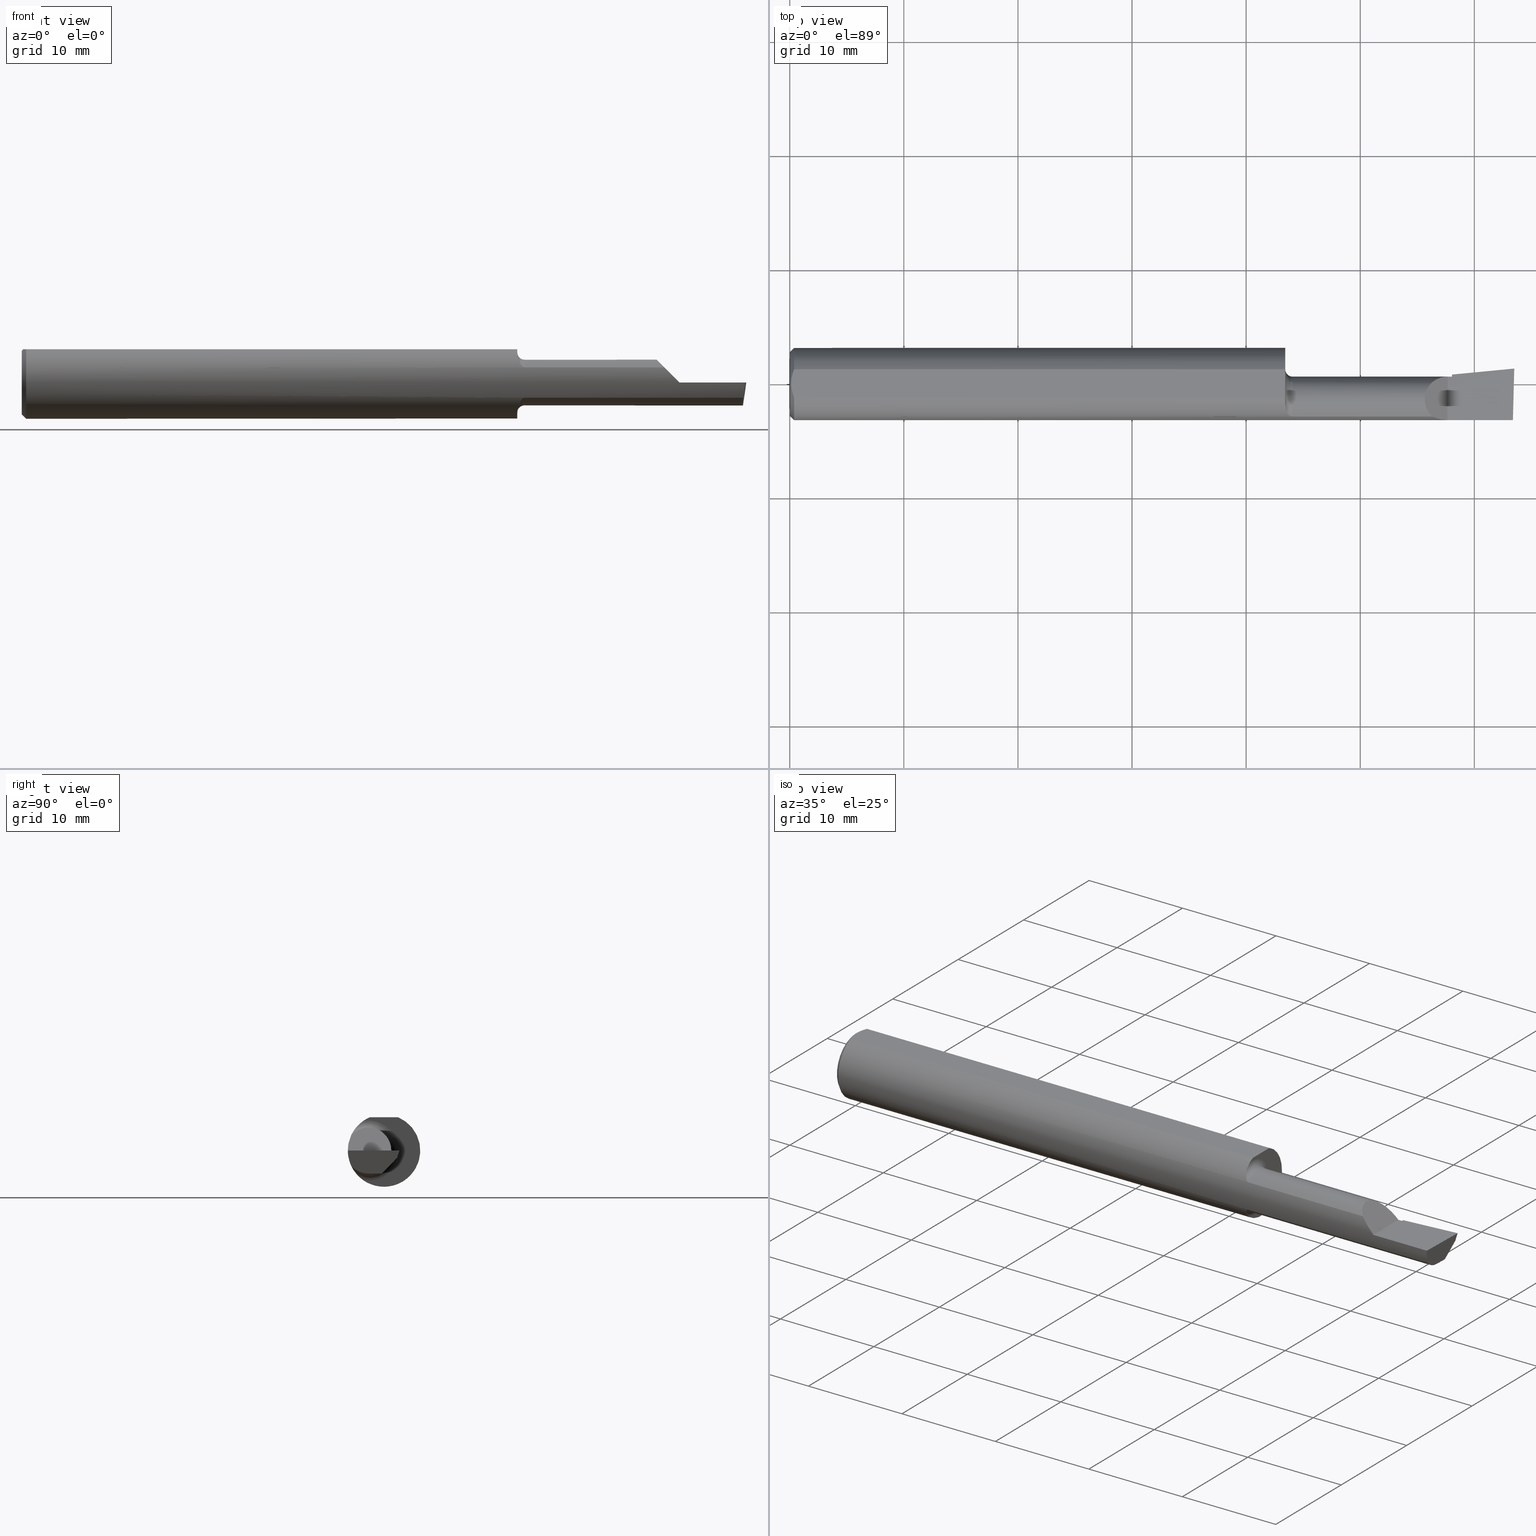
[diagram: canonical four-view strip — front | top / right | iso, engineering-drawing reading convention]
A machine part, canonical four-view strip (front | top / right | iso — engineering-drawing reading convention). The complete STEP part file that produces these views, byte-faithful:
ISO-10303-21;
HEADER;
FILE_DESCRIPTION (( 'STEP AP214' ),
    '1' );
FILE_NAME ('B180750.STEP',
    '2019-07-25T18:12:56',
    ( '' ),
    ( '' ),
    'SwSTEP 2.0',
    'SolidWorks 2018',
    '' );
FILE_SCHEMA (( 'AUTOMOTIVE_DESIGN' ));
ENDSEC;

DATA;
#1 = VERTEX_POINT ( 'NONE', #439 ) ;
#2 = CARTESIAN_POINT ( 'NONE',  ( 1.709999999999999964, 0.04895916665957456004, 0.1148500000000000076 ) ) ;
#3 = CARTESIAN_POINT ( 'NONE',  ( 0.01499999999999999424, 0.0000000000000000000, 0.0000000000000000000 ) ) ;
#4 = DIRECTION ( 'NONE',  ( 1.000000000000000000, -3.414809992080329023E-18, 0.0000000000000000000 ) ) ;
#5 = LINE ( 'NONE', #133, #515 ) ;
#6 = DIRECTION ( 'NONE',  ( 1.000000000000000000, 0.0000000000000000000, 0.0000000000000000000 ) ) ;
#7 = ORIENTED_EDGE ( 'NONE', *, *, #29, .F. ) ;
#8 = EDGE_CURVE ( 'NONE', #317, #527, #427, .T. ) ;
#9 = EDGE_LOOP ( 'NONE', ( #300, #383, #232, #120, #325, #541, #244, #77, #151, #167, #146, #246, #584 ) ) ;
#10 = CARTESIAN_POINT ( 'NONE',  ( 2.285000000000000142, -0.05399999999999999939, 0.0000000000000000000 ) ) ;
#11 = CARTESIAN_POINT ( 'NONE',  ( 2.010000000000000231, -0.1133222222222222686, -0.05239843939104745635 ) ) ;
#12 = AXIS2_PLACEMENT_3D ( 'NONE', #86, #363, #92 ) ;
#13 = ADVANCED_FACE ( 'NONE', ( #105 ), #334, .F. ) ;
#14 = CARTESIAN_POINT ( 'NONE',  ( 2.270000000000000018, -0.1248500000000000165, 2.816687638038912303E-17 ) ) ;
#15 = VECTOR ( 'NONE', #143, 39.37007874015748143 ) ;
#16 = ORIENTED_EDGE ( 'NONE', *, *, #53, .T. ) ;
#17 = ADVANCED_FACE ( 'NONE', ( #567 ), #587, .F. ) ;
#18 = AXIS2_PLACEMENT_3D ( 'NONE', #127, #257, #447 ) ;
#19 = ORIENTED_EDGE ( 'NONE', *, *, #458, .T. ) ;
#20 = SURFACE_SIDE_STYLE ('',( #321 ) ) ;
#21 = EDGE_CURVE ( 'NONE', #381, #527, #481, .T. ) ;
#22 = DIRECTION ( 'NONE',  ( 0.0000000000000000000, -1.000000000000000000, 0.0000000000000000000 ) ) ;
#23 = VERTEX_POINT ( 'NONE', #171 ) ;
#24 = SURFACE_STYLE_USAGE ( .BOTH. , #20 ) ;
#25 = LINE ( 'NONE', #136, #575 ) ;
#26 = ORIENTED_EDGE ( 'NONE', *, *, #360, .T. ) ;
#27 = PRESENTATION_LAYER_ASSIGNMENT (  '', '', ( #291 ) ) ;
#28 = CARTESIAN_POINT ( 'NONE',  ( 0.01499999999999999077, -0.04895916665957456004, 0.1148500000000000215 ) ) ;
#29 = EDGE_CURVE ( 'NONE', #538, #228, #197, .T. ) ;
#30 = CARTESIAN_POINT ( 'NONE',  ( 0.01499999999999999424, 0.04895916665957457392, 0.1148500000000000076 ) ) ;
#31 = DIRECTION ( 'NONE',  ( 0.0000000000000000000, -1.000000000000000000, 0.0000000000000000000 ) ) ;
#32 = CARTESIAN_POINT ( 'NONE',  ( 1.723217602974939533, -0.1090277136498279120, 0.06089509507572538061 ) ) ;
#33 = CARTESIAN_POINT ( 'NONE',  ( 2.495338905960690301, -0.1248500000000000582, -6.632093541198142708E-17 ) ) ;
#34 = CYLINDRICAL_SURFACE ( 'NONE', #247, 0.07914999999999995650 ) ;
#35 = FACE_OUTER_BOUND ( 'NONE', #295, .T. ) ;
#36 = B_SPLINE_CURVE_WITH_KNOTS ( 'NONE', 3,
 ( #28, #115, #436, #346, #306, #437 ),
 .UNSPECIFIED., .F., .F.,
 ( 4, 2, 4 ),
 ( 0.001029394377391489035, 0.001663875367397493060, 0.002298356357403497086 ),
 .UNSPECIFIED. ) ;
#37 = ORIENTED_EDGE ( 'NONE', *, *, #593, .T. ) ;
#38 = VERTEX_POINT ( 'NONE', #214 ) ;
#39 = DIRECTION ( 'NONE',  ( -0.0000000000000000000, 1.000000000000000000, -0.0000000000000000000 ) ) ;
#40 = EDGE_CURVE ( 'NONE', #467, #90, #117, .T. ) ;
#41 = CARTESIAN_POINT ( 'NONE',  ( 1.734999999999999876, -0.1133222222222222131, 0.05239843939104742165 ) ) ;
#42 = CARTESIAN_POINT ( 'NONE',  ( 2.485278273515959313, -0.09572943287973845194, -0.08811753218725941472 ) ) ;
#43 = VERTEX_POINT ( 'NONE', #2 ) ;
#44 = DIRECTION ( 'NONE',  ( -1.000000000000000000, 3.414809992080329023E-18, 0.0000000000000000000 ) ) ;
#45 = PRODUCT_DEFINITION_SHAPE ( 'NONE', 'NONE',  #544 ) ;
#46 = DIRECTION ( 'NONE',  ( 1.000000000000000000, -3.414809992080329023E-18, 0.0000000000000000000 ) ) ;
#47 = DIRECTION ( 'NONE',  ( 3.414809992080329023E-18, 1.000000000000000000, 0.0000000000000000000 ) ) ;
#48 = AXIS2_PLACEMENT_3D ( 'NONE', #74, #520, #31 ) ;
#49 = CARTESIAN_POINT ( 'NONE',  ( 1.710429435078794747, -0.08094870196673338569, -0.09525057567498897149 ) ) ;
#50 = SURFACE_STYLE_USAGE ( .BOTH. , #275 ) ;
#51 = CARTESIAN_POINT ( 'NONE',  ( 2.488690395572168423, -0.007488501277203558557, -0.07914999999999992875 ) ) ;
#52 = VECTOR ( 'NONE', #327, 39.37007874015748854 ) ;
#53 = EDGE_CURVE ( 'NONE', #534, #199, #119, .T. ) ;
#54 = ORIENTED_EDGE ( 'NONE', *, *, #560, .T. ) ;
#55 = ORIENTED_EDGE ( 'NONE', *, *, #424, .F. ) ;
#56 = DIRECTION ( 'NONE',  ( 0.0000000000000000000, -1.000000000000000000, 0.0000000000000000000 ) ) ;
#57 = CARTESIAN_POINT ( 'NONE',  ( 2.500000000000000000, -0.05399999999999999939, -0.07914999999999994262 ) ) ;
#58 = SHAPE_DEFINITION_REPRESENTATION ( #45, #251 ) ;
#59 = ORIENTED_EDGE ( 'NONE', *, *, #581, .T. ) ;
#60 = EDGE_LOOP ( 'NONE', ( #262, #123, #284, #270 ) ) ;
#61 = ADVANCED_FACE ( 'NONE', ( #63 ), #320, .T. ) ;
#62 = FACE_OUTER_BOUND ( 'NONE', #97, .T. ) ;
#63 = FACE_OUTER_BOUND ( 'NONE', #366, .T. ) ;
#64 = ORIENTED_EDGE ( 'NONE', *, *, #161, .T. ) ;
#65 = ADVANCED_FACE ( 'NONE', ( #530 ), #217, .T. ) ;
#66 = PRODUCT_CONTEXT ( 'NONE', #338, 'mechanical' ) ;
#67 = CARTESIAN_POINT ( 'NONE',  ( 0.01499999999999999424, 0.0000000000000000000, 0.0000000000000000000 ) ) ;
#68 = EDGE_LOOP ( 'NONE', ( #463, #54, #591, #507, #413, #189 ) ) ;
#69 = VECTOR ( 'NONE', #421, 39.37007874015748143 ) ;
#70 = DIRECTION ( 'NONE',  ( -1.000000000000000000, -0.0000000000000000000, -0.0000000000000000000 ) ) ;
#71 = EDGE_LOOP ( 'NONE', ( #80, #7, #487, #590, #350 ) ) ;
#72 = AXIS2_PLACEMENT_3D ( 'NONE', #435, #243, #574 ) ;
#73 = EDGE_LOOP ( 'NONE', ( #55, #390, #26 ) ) ;
#74 = CARTESIAN_POINT ( 'NONE',  ( 1.709999999999999964, -0.05399999999999999939, 0.0000000000000000000 ) ) ;
#75 = CARTESIAN_POINT ( 'NONE',  ( 0.0000000000000000000, 1.437123018799416669E-17, 0.1098499999999996424 ) ) ;
#76 = AXIS2_PLACEMENT_3D ( 'NONE', #67, #70, #209 ) ;
#77 = ORIENTED_EDGE ( 'NONE', *, *, #466, .T. ) ;
#78 = CARTESIAN_POINT ( 'NONE',  ( 1.724891482046761126, -0.1103130882036816723, 0.05851436580809128707 ) ) ;
#79 = ORIENTED_EDGE ( 'NONE', *, *, #578, .F. ) ;
#80 = ORIENTED_EDGE ( 'NONE', *, *, #273, .F. ) ;
#81 = CARTESIAN_POINT ( 'NONE',  ( 2.495338905960690301, -0.1248500000000000582, -6.632093541198142708E-17 ) ) ;
#82 = CIRCLE ( 'NONE', #479, 0.07914999999999995650 ) ;
#83 = CIRCLE ( 'NONE', #98, 0.07914999999999995650 ) ;
#84 = CARTESIAN_POINT ( 'NONE',  ( 2.500000000000000000, -0.05399999999999999939, -0.07914999999999994262 ) ) ;
#85 = DIRECTION ( 'NONE',  ( -1.000000000000000000, 3.414809992080329023E-18, 0.0000000000000000000 ) ) ;
#86 = CARTESIAN_POINT ( 'NONE',  ( 2.500000000000000000, -0.2500000000000000555, -6.829619984160658046E-17 ) ) ;
#87 = CARTESIAN_POINT ( 'NONE',  ( 1.709999999999999964, -0.07089166666666683880, -0.1027710761704002107 ) ) ;
#88 = CIRCLE ( 'NONE', #451, 0.1248500000000000026 ) ;
#89 = DIRECTION ( 'NONE',  ( -0.09165774897393340337, 0.9519021185660615503, -0.2923717047227299970 ) ) ;
#90 = VERTEX_POINT ( 'NONE', #138 ) ;
#91 = ORIENTED_EDGE ( 'NONE', *, *, #273, .T. ) ;
#92 = DIRECTION ( 'NONE',  ( -1.000000000000000000, 0.0000000000000000000, 4.194046792260684025E-16 ) ) ;
#93 = PRESENTATION_LAYER_ASSIGNMENT (  '', '', ( #227 ) ) ;
#94 = MECHANICAL_DESIGN_GEOMETRIC_PRESENTATION_REPRESENTATION (  '', ( #227 ), #129 ) ;
#95 = LINE ( 'NONE', #150, #144 ) ;
#96 = LINE ( 'NONE', #440, #145 ) ;
#97 = EDGE_LOOP ( 'NONE', ( #308, #59, #79, #597, #158, #365, #464, #149, #297, #396 ) ) ;
#98 = AXIS2_PLACEMENT_3D ( 'NONE', #10, #186, #56 ) ;
#99 = ADVANCED_FACE ( 'NONE', ( #525 ), #410, .F. ) ;
#100 = CARTESIAN_POINT ( 'NONE',  ( 2.251833290544947630, -0.1248500000000000165, 0.01816670945505155857 ) ) ;
#101 = VERTEX_POINT ( 'NONE', #318 ) ;
#102 = MANIFOLD_SOLID_BREP ( 'Extrude7', #555 ) ;
#103 = AXIS2_PLACEMENT_3D ( 'NONE', #460, #191, #331 ) ;
#104 = APPLICATION_PROTOCOL_DEFINITION ( 'draft international standard', 'automotive_design', 1998, #299 ) ;
#105 = FACE_OUTER_BOUND ( 'NONE', #375, .T. ) ;
#106 = ADVANCED_FACE ( 'NONE', ( #192 ), #324, .F. ) ;
#107 = DIRECTION ( 'NONE',  ( 1.000000000000000000, 0.0000000000000000000, 0.0000000000000000000 ) ) ;
#108 = PLANE ( 'NONE',  #156 ) ;
#109 = DIMENSIONAL_EXPONENTS ( 1.000000000000000000, 0.0000000000000000000, 0.0000000000000000000, 0.0000000000000000000, 0.0000000000000000000, 0.0000000000000000000, 0.0000000000000000000 ) ;
#110 = LINE ( 'NONE', #535, #118 ) ;
#111 = ORIENTED_EDGE ( 'NONE', *, *, #218, .T. ) ;
#112 = AXIS2_PLACEMENT_3D ( 'NONE', #537, #124, #310 ) ;
#113 = CARTESIAN_POINT ( 'NONE',  ( 0.01193974418109659645, 0.04115525648180389656, 0.1148500000000000076 ) ) ;
#114 = DIRECTION ( 'NONE',  ( 0.0000000000000000000, 0.6963153109074924352, 0.7177360153954949196 ) ) ;
#115 = CARTESIAN_POINT ( 'NONE',  ( 0.01195732443765553168, -0.04120008761723500251, 0.1148500000000000215 ) ) ;
#116 = ORIENTED_EDGE ( 'NONE', *, *, #248, .T. ) ;
#117 = B_SPLINE_CURVE_WITH_KNOTS ( 'NONE', 3,
 ( #266, #393, #309, #353, #180, #494, #277, #224, #135, #546, #450, #49, #178, #87 ),
 .UNSPECIFIED., .F., .F.,
 ( 4, 2, 2, 2, 2, 2, 4 ),
 ( 1.961860195742902937E-07, 0.0001199556417433995091, 0.0002397150974672247119, 0.0004792340089148616734, 0.0009582718318101460589, 0.001437309654705431041, 0.001916347477600715806 ),
 .UNSPECIFIED. ) ;
#118 = VECTOR ( 'NONE', #307, 39.37007874015748854 ) ;
#119 = LINE ( 'NONE', #398, #213 ) ;
#120 = ORIENTED_EDGE ( 'NONE', *, *, #571, .T. ) ;
#121 = CARTESIAN_POINT ( 'NONE',  ( 2.489204846642126601, -0.1133222222222222686, -0.05239843939104745635 ) ) ;
#122 =( GEOMETRIC_REPRESENTATION_CONTEXT ( 3 ) GLOBAL_UNCERTAINTY_ASSIGNED_CONTEXT ( ( #351 ) ) GLOBAL_UNIT_ASSIGNED_CONTEXT ( ( #293, #378, #476 ) ) REPRESENTATION_CONTEXT ( 'NONE', 'WORKASPACE' ) );
#123 = ORIENTED_EDGE ( 'NONE', *, *, #21, .T. ) ;
#124 = DIRECTION ( 'NONE',  ( -1.000000000000000000, -0.0000000000000000000, -0.0000000000000000000 ) ) ;
#125 = DIRECTION ( 'NONE',  ( 0.0000000000000000000, 1.000000000000000000, -8.537024980200821325E-17 ) ) ;
#126 = LINE ( 'NONE', #444, #495 ) ;
#127 = CARTESIAN_POINT ( 'NONE',  ( 0.0000000000000000000, 0.0000000000000000000, 0.0000000000000000000 ) ) ;
#128 = ORIENTED_EDGE ( 'NONE', *, *, #540, .T. ) ;
#129 =( GEOMETRIC_REPRESENTATION_CONTEXT ( 3 ) GLOBAL_UNCERTAINTY_ASSIGNED_CONTEXT ( ( #286 ) ) GLOBAL_UNIT_ASSIGNED_CONTEXT ( ( #153, #245, #241 ) ) REPRESENTATION_CONTEXT ( 'NONE', 'WORKASPACE' ) );
#130 = VERTEX_POINT ( 'NONE', #226 ) ;
#131 = EDGE_CURVE ( 'NONE', #90, #43, #583, .T. ) ;
#132 = DIRECTION ( 'NONE',  ( -3.414809992080329023E-18, -1.000000000000000000, 0.0000000000000000000 ) ) ;
#133 = CARTESIAN_POINT ( 'NONE',  ( 0.01499999999999999424, 0.0000000000000000000, -0.1248500000000000026 ) ) ;
#134 = DIMENSIONAL_EXPONENTS ( 1.000000000000000000, 0.0000000000000000000, 0.0000000000000000000, 0.0000000000000000000, 0.0000000000000000000, 0.0000000000000000000, 0.0000000000000000000 ) ;
#135 = CARTESIAN_POINT ( 'NONE',  ( 1.716709462345916704, -0.1014961360546400293, -0.07295290821911704082 ) ) ;
#136 = CARTESIAN_POINT ( 'NONE',  ( 1.709999999999999964, 0.1748500000000000054, 0.1148500000000000076 ) ) ;
#137 = ORIENTED_EDGE ( 'NONE', *, *, #161, .F. ) ;
#138 = CARTESIAN_POINT ( 'NONE',  ( 1.709999999999999964, -0.07089166666666683880, -0.1027710761704002107 ) ) ;
#139 = DIRECTION ( 'NONE',  ( 1.000000000000000000, -3.414809992080329023E-18, 0.0000000000000000000 ) ) ;
#140 = FILL_AREA_STYLE ('',( #359 ) ) ;
#141 = CARTESIAN_POINT ( 'NONE',  ( 2.285000000000000142, 0.03244785463752900695, 0.0000000000000000000 ) ) ;
#142 = EDGE_LOOP ( 'NONE', ( #553, #577, #162, #111, #547, #400 ) ) ;
#143 = DIRECTION ( 'NONE',  ( -1.000000000000000000, -0.0000000000000000000, -0.0000000000000000000 ) ) ;
#144 = VECTOR ( 'NONE', #367, 39.37007874015748854 ) ;
#145 = VECTOR ( 'NONE', #585, 39.37007874015748143 ) ;
#146 = ORIENTED_EDGE ( 'NONE', *, *, #482, .T. ) ;
#147 = DIRECTION ( 'NONE',  ( -3.414809992080329408E-18, -1.000000000000000000, 0.0000000000000000000 ) ) ;
#148 = ADVANCED_FACE ( 'NONE', ( #290 ), #550, .T. ) ;
#149 = ORIENTED_EDGE ( 'NONE', *, *, #540, .F. ) ;
#150 = CARTESIAN_POINT ( 'NONE',  ( 2.285000000000000142, 0.005014495618354286935, -0.04604586163080774674 ) ) ;
#151 = ORIENTED_EDGE ( 'NONE', *, *, #536, .F. ) ;
#152 = ADVANCED_FACE ( 'NONE', ( #165 ), #595, .F. ) ;
#153 =( CONVERSION_BASED_UNIT ( 'INCH', #312 ) LENGTH_UNIT ( ) NAMED_UNIT ( #442 ) );
#154 = DIRECTION ( 'NONE',  ( -0.9953961983671800740, -0.09584575252021031166, 0.0000000000000000000 ) ) ;
#155 = LINE ( 'NONE', #233, #418 ) ;
#156 = AXIS2_PLACEMENT_3D ( 'NONE', #160, #570, #392 ) ;
#157 =( BOUNDED_CURVE ( )  B_SPLINE_CURVE ( 3, ( #216, #356, #255, #33 ),
 .UNSPECIFIED., .F., .F. ) 
 B_SPLINE_CURVE_WITH_KNOTS ( ( 4, 4 ),
 ( 0.9276418632516101326, 1.360746882514365153 ),
 .UNSPECIFIED. ) 
 CURVE ( )  GEOMETRIC_REPRESENTATION_ITEM ( )  RATIONAL_B_SPLINE_CURVE ( ( 1.000000000000000000, 0.9844293286710339430, 0.9844293286710339430, 1.000000000000000000 ) ) 
 REPRESENTATION_ITEM ( '' )  );
#158 = ORIENTED_EDGE ( 'NONE', *, *, #424, .T. ) ;
#159 = CARTESIAN_POINT ( 'NONE',  ( 2.217601560608951861, -0.1133222222222222964, 0.05239843939104740084 ) ) ;
#160 = CARTESIAN_POINT ( 'NONE',  ( 2.500000000000000000, 0.1748500000000000054, 0.1148500000000000076 ) ) ;
#161 = EDGE_CURVE ( 'NONE', #472, #90, #470, .T. ) ;
#162 = ORIENTED_EDGE ( 'NONE', *, *, #453, .T. ) ;
#163 = CARTESIAN_POINT ( 'NONE',  ( 2.217601560608951861, -0.1133222222222222964, 0.05239843939104740084 ) ) ;
#164 = LINE ( 'NONE', #311, #477 ) ;
#165 = FACE_OUTER_BOUND ( 'NONE', #60, .T. ) ;
#166 = ORIENTED_EDGE ( 'NONE', *, *, #458, .F. ) ;
#167 = ORIENTED_EDGE ( 'NONE', *, *, #179, .F. ) ;
#168 = CARTESIAN_POINT ( 'NONE',  ( 0.01499999999999999424, 0.0000000000000000000, -0.1248500000000000026 ) ) ;
#169 = CARTESIAN_POINT ( 'NONE',  ( 2.487482489302630828, -0.09806266089631193728, -0.06967435635555055407 ) ) ;
#170 = VERTEX_POINT ( 'NONE', #501 ) ;
#171 = CARTESIAN_POINT ( 'NONE',  ( 0.01499999999999999077, -0.04895916665957456004, 0.1148500000000000215 ) ) ;
#172 = LENGTH_MEASURE_WITH_UNIT ( LENGTH_MEASURE( 0.02539999999999999897 ), #341 );
#173 = ORIENTED_EDGE ( 'NONE', *, *, #513, .T. ) ;
#174 = EDGE_CURVE ( 'NONE', #23, #552, #36, .T. ) ;
#175 = ORIENTED_EDGE ( 'NONE', *, *, #174, .F. ) ;
#176 = CARTESIAN_POINT ( 'NONE',  ( 2.496588791452757583, 0.04483577539103072995, -0.02600000000000000228 ) ) ;
#177 = CARTESIAN_POINT ( 'NONE',  ( 2.285000000000000142, -0.02710165559382494982, -0.07914999999999994262 ) ) ;
#178 = CARTESIAN_POINT ( 'NONE',  ( 1.709999999999999964, -0.07605073478940851950, -0.09921234202752111930 ) ) ;
#179 = EDGE_CURVE ( 'NONE', #170, #194, #294, .T. ) ;
#180 = CARTESIAN_POINT ( 'NONE',  ( 1.728018389903473340, -0.1118940578004066488, -0.05539504279880012177 ) ) ;
#181 = DIRECTION ( 'NONE',  ( -1.000000000000000000, -0.0000000000000000000, -0.0000000000000000000 ) ) ;
#182 =( NAMED_UNIT ( * ) PLANE_ANGLE_UNIT ( ) SI_UNIT ( $, .RADIAN. ) );
#183 = CYLINDRICAL_SURFACE ( 'NONE', #103, 0.1248500000000000026 ) ;
#184 = ORIENTED_EDGE ( 'NONE', *, *, #453, .F. ) ;
#185 = DIRECTION ( 'NONE',  ( -3.414809992080329023E-18, -1.000000000000000000, 0.0000000000000000000 ) ) ;
#186 = DIRECTION ( 'NONE',  ( -1.000000000000000000, 3.414809992080329023E-18, -0.0000000000000000000 ) ) ;
#187 = AXIS2_PLACEMENT_3D ( 'NONE', #491, #529, #263 ) ;
#188 = DIRECTION ( 'NONE',  ( -1.000000000000000000, 3.414809992080329023E-18, -0.0000000000000000000 ) ) ;
#189 = ORIENTED_EDGE ( 'NONE', *, *, #360, .F. ) ;
#190 = LINE ( 'NONE', #455, #598 ) ;
#191 = DIRECTION ( 'NONE',  ( -1.000000000000000000, -0.0000000000000000000, -0.0000000000000000000 ) ) ;
#192 = FACE_OUTER_BOUND ( 'NONE', #68, .T. ) ;
#193 = DIRECTION ( 'NONE',  ( -1.000000000000000000, 5.691349986800549142E-18, -0.0000000000000000000 ) ) ;
#194 = VERTEX_POINT ( 'NONE', #168 ) ;
#195 = DIRECTION ( 'NONE',  ( 0.0000000000000000000, 0.0000000000000000000, 1.000000000000000000 ) ) ;
#196 = AXIS2_PLACEMENT_3D ( 'NONE', #141, #44, #185 ) ;
#197 = CIRCLE ( 'NONE', #112, 0.1098499999999996424 ) ;
#198 = ORIENTED_EDGE ( 'NONE', *, *, #493, .F. ) ;
#199 = VERTEX_POINT ( 'NONE', #342 ) ;
#200 = EDGE_CURVE ( 'NONE', #552, #170, #426, .T. ) ;
#201 = ADVANCED_FACE ( 'NONE', ( #462 ), #382, .F. ) ;
#202 = ORIENTED_EDGE ( 'NONE', *, *, #513, .F. ) ;
#203 = CIRCLE ( 'NONE', #531, 0.1248500000000000026 ) ;
#204 = FACE_OUTER_BOUND ( 'NONE', #521, .T. ) ;
#205 = AXIS2_PLACEMENT_3D ( 'NONE', #220, #261, #132 ) ;
#206 = PLANE ( 'NONE',  #490 ) ;
#207 = VERTEX_POINT ( 'NONE', #163 ) ;
#208 = AXIS2_PLACEMENT_3D ( 'NONE', #335, #195, #107 ) ;
#209 = DIRECTION ( 'NONE',  ( 0.0000000000000000000, 0.0000000000000000000, 1.000000000000000000 ) ) ;
#210 = PRODUCT ( 'B180750', 'B180750', '', ( #66 ) ) ;
#211 = ORIENTED_EDGE ( 'NONE', *, *, #29, .T. ) ;
#212 = FACE_OUTER_BOUND ( 'NONE', #9, .T. ) ;
#213 = VECTOR ( 'NONE', #401, 39.37007874015748143 ) ;
#214 = CARTESIAN_POINT ( 'NONE',  ( 2.500000000000023093, 0.05315000000001686431, 4.789857934360050309E-14 ) ) ;
#215 = CARTESIAN_POINT ( 'NONE',  ( 1.718812999615358716, -0.1047986892473505155, 0.06808587976958074828 ) ) ;
#216 = CARTESIAN_POINT ( 'NONE',  ( 2.489204846642126601, -0.1133222222222222686, -0.05239843939104745635 ) ) ;
#217 = CONICAL_SURFACE ( 'NONE', #339, 0.1248500000000000026, 0.7853981633974602694 ) ;
#218 = EDGE_CURVE ( 'NONE', #274, #38, #333, .T. ) ;
#219 = ORIENTED_EDGE ( 'NONE', *, *, #248, .F. ) ;
#220 = CARTESIAN_POINT ( 'NONE',  ( 1.734999999999999876, -0.05399999999999999245, 0.0000000000000000000 ) ) ;
#221 = VERTEX_POINT ( 'NONE', #389 ) ;
#222 = CARTESIAN_POINT ( 'NONE',  ( 2.496845404695579251, 0.04653575378121536238, -0.02427319444832065284 ) ) ;
#223 = CARTESIAN_POINT ( 'NONE',  ( 2.270000000000000018, 0.02514999999999993630, 2.816687638038912303E-17 ) ) ;
#224 = CARTESIAN_POINT ( 'NONE',  ( 1.718837986083219915, -0.1048226606062678257, -0.06804511026469615975 ) ) ;
#225 = DIRECTION ( 'NONE',  ( -1.000000000000000000, -0.0000000000000000000, -0.0000000000000000000 ) ) ;
#226 = CARTESIAN_POINT ( 'NONE',  ( 2.284999999999999698, 0.02446209205278016344, -0.02600000000000000575 ) ) ;
#227 = STYLED_ITEM ( 'NONE', ( #406 ), #251 ) ;
#228 = VERTEX_POINT ( 'NONE', #75 ) ;
#229 = DIRECTION ( 'NONE',  ( 4.858719700838190352E-34, 8.537024980200821325E-17, 1.000000000000000000 ) ) ;
#230 = DIRECTION ( 'NONE',  ( -0.9922060308645372917, 0.02598182930475530575, 0.1218693434052200292 ) ) ;
#231 = CARTESIAN_POINT ( 'NONE',  ( 0.005000000000000237761, 1.454187638523587873E-17, 0.1148500000000000076 ) ) ;
#232 = ORIENTED_EDGE ( 'NONE', *, *, #434, .T. ) ;
#233 = CARTESIAN_POINT ( 'NONE',  ( 1.387204702863203742, -0.05399999999999999939, 3.984153547983287662E-16 ) ) ;
#234 = CARTESIAN_POINT ( 'NONE',  ( 2.285000000000000142, 0.02514999999999996058, 9.802154982235643272E-16 ) ) ;
#235 = LINE ( 'NONE', #579, #523 ) ;
#236 = ADVANCED_FACE ( 'NONE', ( #361 ), #260, .T. ) ;
#237 = CARTESIAN_POINT ( 'NONE',  ( 2.510715839651728842, 0.04619605541595023929, -0.02600000000000000228 ) ) ;
#238 = ADVANCED_FACE ( 'NONE', ( #349 ), #108, .F. ) ;
#239 = ORIENTED_EDGE ( 'NONE', *, *, #586, .F. ) ;
#240 = ADVANCED_FACE ( 'NONE', ( #343 ), #206, .T. ) ;
#241 =( NAMED_UNIT ( * ) SI_UNIT ( $, .STERADIAN. ) SOLID_ANGLE_UNIT ( ) );
#242 = AXIS2_PLACEMENT_3D ( 'NONE', #457, #85, #548 ) ;
#243 = DIRECTION ( 'NONE',  ( 1.000000000000000000, 0.0000000000000000000, 0.0000000000000000000 ) ) ;
#244 = ORIENTED_EDGE ( 'NONE', *, *, #593, .F. ) ;
#245 =( NAMED_UNIT ( * ) PLANE_ANGLE_UNIT ( ) SI_UNIT ( $, .RADIAN. ) );
#246 = ORIENTED_EDGE ( 'NONE', *, *, #131, .F. ) ;
#247 = AXIS2_PLACEMENT_3D ( 'NONE', #371, #330, #147 ) ;
#248 = EDGE_CURVE ( 'NONE', #379, #1, #235, .T. ) ;
#249 = CARTESIAN_POINT ( 'NONE',  ( 1.709999999999997300, -0.07604212793636097589, 0.09921827904968776035 ) ) ;
#250 = CARTESIAN_POINT ( 'NONE',  ( 0.009410502401328815075, 0.03310661131402416191, 0.1148500000000000076 ) ) ;
#251 = ADVANCED_BREP_SHAPE_REPRESENTATION ( 'B180750', ( #102, #208 ), #122 ) ;
#252 = DIRECTION ( 'NONE',  ( -0.7071067811865432429, 0.0000000000000000000, -0.7071067811865517916 ) ) ;
#253 = VECTOR ( 'NONE', #486, 39.37007874015748854 ) ;
#254 = EDGE_LOOP ( 'NONE', ( #16, #377, #173, #563 ) ) ;
#255 = CARTESIAN_POINT ( 'NONE',  ( 2.493107549887203067, -0.1248500000000000165, -0.01816670945505174245 ) ) ;
#256 = AXIS2_PLACEMENT_3D ( 'NONE', #572, #425, #22 ) ;
#257 = DIRECTION ( 'NONE',  ( 1.000000000000000000, 0.0000000000000000000, 0.0000000000000000000 ) ) ;
#258 = ORIENTED_EDGE ( 'NONE', *, *, #200, .F. ) ;
#259 = EDGE_CURVE ( 'NONE', #472, #288, #264, .T. ) ;
#260 = CONICAL_SURFACE ( 'NONE', #72, 0.1248500000000000026, 0.7853981633974602694 ) ;
#261 = DIRECTION ( 'NONE',  ( -1.000000000000000000, 3.414809992080329023E-18, -0.0000000000000000000 ) ) ;
#262 = ORIENTED_EDGE ( 'NONE', *, *, #545, .F. ) ;
#263 = DIRECTION ( 'NONE',  ( -3.414809992080329023E-18, -1.000000000000000000, 0.0000000000000000000 ) ) ;
#264 = B_SPLINE_CURVE_WITH_KNOTS ( 'NONE', 3,
 ( #483, #249, #576, #480, #267, #533, #215, #32, #78, #588, #589, #313, #354, #41 ),
 .UNSPECIFIED., .F., .F.,
 ( 4, 2, 2, 2, 2, 2, 4 ),
 ( 6.218642020841659644E-05, 0.0005341583913332138443, 0.001006130362458011133, 0.001478102333582808096, 0.001714088319145201916, 0.001832081311926399151, 0.001950074304707596169 ),
 .UNSPECIFIED. ) ;
#265 = ORIENTED_EDGE ( 'NONE', *, *, #259, .T. ) ;
#266 = CARTESIAN_POINT ( 'NONE',  ( 1.734999999999999876, -0.1133222222222222131, -0.05239843939104742165 ) ) ;
#267 = CARTESIAN_POINT ( 'NONE',  ( 1.713311842522019068, -0.09402697795089827448, 0.08235509766544019117 ) ) ;
#268 = AXIS2_PLACEMENT_3D ( 'NONE', #543, #89, #279 ) ;
#269 = PLANE ( 'NONE',  #352 ) ;
#270 = ORIENTED_EDGE ( 'NONE', *, *, #344, .T. ) ;
#271 = DIRECTION ( 'NONE',  ( 0.1053106618242764664, 0.6976485211320146984, 0.7086580314005096470 ) ) ;
#272 = COLOUR_RGB ( '',0.7529411764705882248, 0.7529411764705882248, 0.7529411764705882248 ) ;
#273 = EDGE_CURVE ( 'NONE', #228, #552, #96, .T. ) ;
#274 = VERTEX_POINT ( 'NONE', #176 ) ;
#275 = SURFACE_SIDE_STYLE ('',( #496 ) ) ;
#276 = DIRECTION ( 'NONE',  ( 0.0000000000000000000, 0.0000000000000000000, 1.000000000000000000 ) ) ;
#277 = CARTESIAN_POINT ( 'NONE',  ( 1.723205018706407410, -0.1090156405642970922, -0.06091562844815655298 ) ) ;
#278 = CARTESIAN_POINT ( 'NONE',  ( 2.010000000000000231, -0.1133222222222222686, 0.05239843939104745635 ) ) ;
#279 = DIRECTION ( 'NONE',  ( 0.0000000000000000000, 0.2936076258024056806, 0.9559260233253795702 ) ) ;
#280 = CARTESIAN_POINT ( 'NONE',  ( 1.709999999999999964, 0.05014999999999992381, 0.0000000000000000000 ) ) ;
#281 = CIRCLE ( 'NONE', #419, 0.1098499999999996424 ) ;
#282 = DIRECTION ( 'NONE',  ( 0.0000000000000000000, -1.000000000000000000, 0.0000000000000000000 ) ) ;
#283 = ORIENTED_EDGE ( 'NONE', *, *, #578, .T. ) ;
#284 = ORIENTED_EDGE ( 'NONE', *, *, #511, .T. ) ;
#285 = CARTESIAN_POINT ( 'NONE',  ( 2.495458699183907392, -0.006836787764517337010, -0.07914999999999994262 ) ) ;
#286 = UNCERTAINTY_MEASURE_WITH_UNIT (LENGTH_MEASURE( 1.000000000000000082E-05 ), #153, 'distance_accuracy_value', 'NONE');
#287 = DIRECTION ( 'NONE',  ( 0.0000000000000000000, 0.0000000000000000000, 1.000000000000000000 ) ) ;
#288 = VERTEX_POINT ( 'NONE', #441 ) ;
#289 = LINE ( 'NONE', #278, #508 ) ;
#290 = FACE_OUTER_BOUND ( 'NONE', #254, .T. ) ;
#291 = STYLED_ITEM ( 'NONE', ( #373 ), #102 ) ;
#292 = LINE ( 'NONE', #11, #69 ) ;
#293 =( CONVERSION_BASED_UNIT ( 'INCH', #172 ) LENGTH_UNIT ( ) NAMED_UNIT ( #134 ) );
#294 = CIRCLE ( 'NONE', #76, 0.1248500000000000026 ) ;
#295 = EDGE_LOOP ( 'NONE', ( #128, #116 ) ) ;
#296 = ADVANCED_FACE ( 'NONE', ( #35 ), #397, .F. ) ;
#297 = ORIENTED_EDGE ( 'NONE', *, *, #493, .T. ) ;
#298 = EDGE_CURVE ( 'NONE', #317, #305, #157, .T. ) ;
#299 = APPLICATION_CONTEXT ( 'automotive_design' ) ;
#300 = ORIENTED_EDGE ( 'NONE', *, *, #581, .F. ) ;
#301 = MECHANICAL_DESIGN_GEOMETRIC_PRESENTATION_REPRESENTATION (  '', ( #291 ), #448 ) ;
#302 = LINE ( 'NONE', #237, #475 ) ;
#303 = CARTESIAN_POINT ( 'NONE',  ( 2.270000000000000018, -0.2500000000000000555, 2.816687638038912303E-17 ) ) ;
#304 = VERTEX_POINT ( 'NONE', #177 ) ;
#305 = VERTEX_POINT ( 'NONE', #81 ) ;
#306 = CARTESIAN_POINT ( 'NONE',  ( 0.005000000000000194393, -0.008410771716546815852, 0.1148500000000000076 ) ) ;
#307 = DIRECTION ( 'NONE',  ( -1.002614254341036985E-18, -0.2936076258024056806, -0.9559260233253797923 ) ) ;
#308 = ORIENTED_EDGE ( 'NONE', *, *, #8, .F. ) ;
#309 = CARTESIAN_POINT ( 'NONE',  ( 1.731867218484672621, -0.1130881303947560285, -0.05290831216931977249 ) ) ;
#310 = DIRECTION ( 'NONE',  ( 0.0000000000000000000, 0.0000000000000000000, 1.000000000000000000 ) ) ;
#311 = CARTESIAN_POINT ( 'NONE',  ( 2.270000000000000018, -0.2500000000000000555, 2.816687638038912303E-17 ) ) ;
#312 = LENGTH_MEASURE_WITH_UNIT ( LENGTH_MEASURE( 0.02539999999999999897 ), #422 );
#313 = CARTESIAN_POINT ( 'NONE',  ( 1.731855009147952096, -0.1130869929873387081, 0.05291095013438988637 ) ) ;
#314 = LINE ( 'NONE', #285, #557 ) ;
#315 = VECTOR ( 'NONE', #181, 39.37007874015748143 ) ;
#316 = DIRECTION ( 'NONE',  ( 0.0000000000000000000, 0.0000000000000000000, -1.000000000000000000 ) ) ;
#317 = VERTEX_POINT ( 'NONE', #394 ) ;
#318 = CARTESIAN_POINT ( 'NONE',  ( 2.285000000000000142, -0.05399999999999999939, -0.07914999999999994262 ) ) ;
#319 = CARTESIAN_POINT ( 'NONE',  ( 2.217601560608951861, -0.1133222222222222964, 0.05239843939104740084 ) ) ;
#320 = PLANE ( 'NONE',  #268 ) ;
#321 = SURFACE_STYLE_FILL_AREA ( #519 ) ;
#322 = AXIS2_PLACEMENT_3D ( 'NONE', #42, #230, #405 ) ;
#323 = VERTEX_POINT ( 'NONE', #582 ) ;
#324 = PLANE ( 'NONE',  #12 ) ;
#325 = ORIENTED_EDGE ( 'NONE', *, *, #415, .F. ) ;
#326 = CARTESIAN_POINT ( 'NONE',  ( 0.0000000000000000000, 0.0000000000000000000, -0.1098499999999996424 ) ) ;
#327 = DIRECTION ( 'NONE',  ( 0.02617694830793584199, 0.9996573249755555945, -1.081567693923432241E-17 ) ) ;
#328 = VECTOR ( 'NONE', #492, 39.37007874015748854 ) ;
#329 = ORIENTED_EDGE ( 'NONE', *, *, #586, .T. ) ;
#330 = DIRECTION ( 'NONE',  ( -1.000000000000000000, 3.414809992080329023E-18, -0.0000000000000000000 ) ) ;
#331 = DIRECTION ( 'NONE',  ( 0.0000000000000000000, 0.0000000000000000000, 1.000000000000000000 ) ) ;
#332 = EDGE_CURVE ( 'NONE', #538, #194, #5, .T. ) ;
#333 = LINE ( 'NONE', #528, #446 ) ;
#334 = TOROIDAL_SURFACE ( 'NONE', #205, 0.1041499999999999093, 0.02499999999999993894 ) ;
#335 = CARTESIAN_POINT ( 'NONE',  ( 0.0000000000000000000, 0.0000000000000000000, 0.0000000000000000000 ) ) ;
#336 = ORIENTED_EDGE ( 'NONE', *, *, #344, .F. ) ;
#337 = DIRECTION ( 'NONE',  ( 1.000000000000000000, -3.414809992080329023E-18, 0.0000000000000000000 ) ) ;
#338 = APPLICATION_CONTEXT ( 'automotive_design' ) ;
#339 = AXIS2_PLACEMENT_3D ( 'NONE', #3, #499, #316 ) ;
#340 = DIRECTION ( 'NONE',  ( -2.377784481325426013E-18, -0.6963153109074924352, -0.7177360153954948085 ) ) ;
#341 =( LENGTH_UNIT ( ) NAMED_UNIT ( * ) SI_UNIT ( $, .METRE. ) );
#342 = CARTESIAN_POINT ( 'NONE',  ( 2.285000000000000142, 0.03244785463753243476, 9.796236164780443746E-16 ) ) ;
#343 = FACE_OUTER_BOUND ( 'NONE', #387, .T. ) ;
#344 = EDGE_CURVE ( 'NONE', #101, #304, #126, .T. ) ;
#345 = DIRECTION ( 'NONE',  ( 0.1240019227990225709, 0.3022330132596686147, 0.9451342385281183978 ) ) ;
#346 = CARTESIAN_POINT ( 'NONE',  ( 0.005932194444709924276, -0.01671525318617307979, 0.1148500000000000215 ) ) ;
#347 = DIRECTION ( 'NONE',  ( -0.7071067811865516806, 0.0000000000000000000, 0.7071067811865431318 ) ) ;
#348 = LINE ( 'NONE', #542, #315 ) ;
#349 = FACE_OUTER_BOUND ( 'NONE', #478, .T. ) ;
#350 = ORIENTED_EDGE ( 'NONE', *, *, #174, .T. ) ;
#351 = UNCERTAINTY_MEASURE_WITH_UNIT (LENGTH_MEASURE( 1.000000000000000082E-05 ), #293, 'distance_accuracy_value', 'NONE');
#352 = AXIS2_PLACEMENT_3D ( 'NONE', #280, #139, #47 ) ;
#353 = CARTESIAN_POINT ( 'NONE',  ( 1.729195140613335901, -0.1123729516825158065, -0.05441079362540581638 ) ) ;
#354 = CARTESIAN_POINT ( 'NONE',  ( 1.733393805215129424, -0.1133222222232596332, 0.05239843938880408419 ) ) ;
#355 = ORIENTED_EDGE ( 'NONE', *, *, #466, .F. ) ;
#356 = CARTESIAN_POINT ( 'NONE',  ( 2.491030522740640851, -0.1209466293052442881, -0.03590911711702328424 ) ) ;
#357 =( NAMED_UNIT ( * ) SI_UNIT ( $, .STERADIAN. ) SOLID_ANGLE_UNIT ( ) );
#358 = CARTESIAN_POINT ( 'NONE',  ( 2.183308174668249890, 0.02515000000000010977, 0.08669182533174922545 ) ) ;
#359 = FILL_AREA_STYLE_COLOUR ( '', #272 ) ;
#360 = EDGE_CURVE ( 'NONE', #323, #221, #164, .T. ) ;
#361 = FACE_OUTER_BOUND ( 'NONE', #71, .T. ) ;
#362 =( CONVERSION_BASED_UNIT ( 'INCH', #559 ) LENGTH_UNIT ( ) NAMED_UNIT ( #109 ) );
#363 = DIRECTION ( 'NONE',  ( -4.194046792260684025E-16, 0.0000000000000000000, -1.000000000000000000 ) ) ;
#364 = CARTESIAN_POINT ( 'NONE',  ( 2.285000000000000142, 0.005014495618354286935, -0.04604586163080774674 ) ) ;
#365 = ORIENTED_EDGE ( 'NONE', *, *, #391, .T. ) ;
#366 = EDGE_LOOP ( 'NONE', ( #516, #329, #532, #412 ) ) ;
#367 = DIRECTION ( 'NONE',  ( -2.377784481325426013E-18, -0.6963153109074924352, -0.7177360153954948085 ) ) ;
#368 = ORIENTED_EDGE ( 'NONE', *, *, #399, .F. ) ;
#369 = DIRECTION ( 'NONE',  ( -0.9953961983671800740, -0.09584575252021028391, 1.093478026937437355E-17 ) ) ;
#370 = EDGE_CURVE ( 'NONE', #199, #130, #110, .T. ) ;
#371 = CARTESIAN_POINT ( 'NONE',  ( 0.0000000000000000000, -0.05399999999999999245, 0.0000000000000000000 ) ) ;
#372 = ADVANCED_FACE ( 'NONE', ( #503 ), #407, .T. ) ;
#373 = PRESENTATION_STYLE_ASSIGNMENT (( #50 ) ) ;
#374 = ORIENTED_EDGE ( 'NONE', *, *, #482, .F. ) ;
#375 = EDGE_LOOP ( 'NONE', ( #265, #283, #510, #137 ) ) ;
#376 = ADVANCED_FACE ( 'NONE', ( #204 ), #269, .T. ) ;
#377 = ORIENTED_EDGE ( 'NONE', *, *, #370, .T. ) ;
#378 =( NAMED_UNIT ( * ) PLANE_ANGLE_UNIT ( ) SI_UNIT ( $, .RADIAN. ) );
#379 = VERTEX_POINT ( 'NONE', #404 ) ;
#380 = EDGE_CURVE ( 'NONE', #43, #489, #25, .T. ) ;
#381 = VERTEX_POINT ( 'NONE', #51 ) ;
#382 = PLANE ( 'NONE',  #569 ) ;
#383 = ORIENTED_EDGE ( 'NONE', *, *, #298, .T. ) ;
#384 = UNCERTAINTY_MEASURE_WITH_UNIT (LENGTH_MEASURE( 1.000000000000000082E-05 ), #362, 'distance_accuracy_value', 'NONE');
#385 = CARTESIAN_POINT ( 'NONE',  ( 0.005947935873631425563, 0.01679708999422678192, 0.1148499999999999938 ) ) ;
#386 = DIRECTION ( 'NONE',  ( -0.06894566448119622548, 0.7160281025913035613, -0.6946583704589933683 ) ) ;
#387 = EDGE_LOOP ( 'NONE', ( #184, #423, #368, #219, #202, #239 ) ) ;
#388 = VECTOR ( 'NONE', #6, 39.37007874015748143 ) ;
#389 = CARTESIAN_POINT ( 'NONE',  ( 2.270000000000000018, 0.02514999999999993630, 2.816687638038912303E-17 ) ) ;
#390 = ORIENTED_EDGE ( 'NONE', *, *, #571, .F. ) ;
#391 = EDGE_CURVE ( 'NONE', #221, #534, #190, .T. ) ;
#392 = DIRECTION ( 'NONE',  ( 0.0000000000000000000, 1.000000000000000000, -4.882484975808304553E-17 ) ) ;
#393 = CARTESIAN_POINT ( 'NONE',  ( 1.733397973893801236, -0.1133222222222222547, -0.05239843939104751186 ) ) ;
#394 = CARTESIAN_POINT ( 'NONE',  ( 2.489204846642126601, -0.1133222222222222686, -0.05239843939104745635 ) ) ;
#395 = DIRECTION ( 'NONE',  ( 0.7071067811865390240, 0.0000000000000000000, -0.7071067811865560104 ) ) ;
#396 = ORIENTED_EDGE ( 'NONE', *, *, #511, .F. ) ;
#397 = PLANE ( 'NONE',  #187 ) ;
#398 = CARTESIAN_POINT ( 'NONE',  ( 2.285000000000000142, -0.2500000000000000555, 2.187580619199813988E-17 ) ) ;
#399 = EDGE_CURVE ( 'NONE', #1, #304, #402, .T. ) ;
#400 = ORIENTED_EDGE ( 'NONE', *, *, #298, .F. ) ;
#401 = DIRECTION ( 'NONE',  ( 3.414809992080329408E-18, 1.000000000000000000, -1.432187289346423802E-33 ) ) ;
#402 = LINE ( 'NONE', #364, #328 ) ;
#403 = DIRECTION ( 'NONE',  ( 0.0000000000000000000, 1.000000000000000000, 0.0000000000000000000 ) ) ;
#404 = CARTESIAN_POINT ( 'NONE',  ( 2.285000000000000142, 0.01818157456899030175, -0.03247372465149766380 ) ) ;
#405 = DIRECTION ( 'NONE',  ( 0.1219104985253556539, 0.0000000000000000000, 0.9925410975618587095 ) ) ;
#406 = PRESENTATION_STYLE_ASSIGNMENT (( #24 ) ) ;
#407 = PLANE ( 'NONE',  #242 ) ;
#408 = AXIS2_PLACEMENT_3D ( 'NONE', #414, #188, #282 ) ;
#409 = CIRCLE ( 'NONE', #256, 0.07914999999999992875 ) ;
#410 = PLANE ( 'NONE',  #322 ) ;
#411 = CARTESIAN_POINT ( 'NONE',  ( 4.111069666048746882E-31, -0.1248499999999999888, 9.802154982235641300E-16 ) ) ;
#412 = ORIENTED_EDGE ( 'NONE', *, *, #505, .T. ) ;
#413 = ORIENTED_EDGE ( 'NONE', *, *, #391, .F. ) ;
#414 = CARTESIAN_POINT ( 'NONE',  ( 2.285000000000000142, -0.05399999999999999939, 0.0000000000000000000 ) ) ;
#415 = EDGE_CURVE ( 'NONE', #288, #207, #289, .T. ) ;
#416 = DIRECTION ( 'NONE',  ( 0.9953961983671787417, 0.09584575252022459191, -4.174738232790345673E-16 ) ) ;
#417 = DIRECTION ( 'NONE',  ( 1.000000000000000000, -3.414809992080329023E-18, 0.0000000000000000000 ) ) ;
#418 = VECTOR ( 'NONE', #416, 39.37007874015748143 ) ;
#419 = AXIS2_PLACEMENT_3D ( 'NONE', #497, #225, #276 ) ;
#420 = EDGE_LOOP ( 'NONE', ( #166, #91, #484, #431, #517 ) ) ;
#421 = DIRECTION ( 'NONE',  ( -1.000000000000000000, 3.414809992080329023E-18, -0.0000000000000000000 ) ) ;
#422 =( LENGTH_UNIT ( ) NAMED_UNIT ( * ) SI_UNIT ( $, .METRE. ) );
#423 = ORIENTED_EDGE ( 'NONE', *, *, #545, .T. ) ;
#424 = EDGE_CURVE ( 'NONE', #207, #221, #599, .T. ) ;
#425 = DIRECTION ( 'NONE',  ( -1.000000000000000000, 3.414809992080329023E-18, -0.0000000000000000000 ) ) ;
#426 = B_SPLINE_CURVE_WITH_KNOTS ( 'NONE', 3,
 ( #524, #432, #385, #250, #113, #30 ),
 .UNSPECIFIED., .F., .F.,
 ( 4, 2, 4 ),
 ( 0.002298356357403497086, 0.002932796277434359007, 0.003567236197465221362 ),
 .UNSPECIFIED. ) ;
#427 =( BOUNDED_CURVE ( )  B_SPLINE_CURVE ( 3, ( #121, #169, #485, #443 ),
 .UNSPECIFIED., .F., .F. ) 
 B_SPLINE_CURVE_WITH_KNOTS ( ( 4, 4 ),
 ( 5.645941690095282794, 6.493234751460117415 ),
 .UNSPECIFIED. ) 
 CURVE ( )  GEOMETRIC_REPRESENTATION_ITEM ( )  RATIONAL_B_SPLINE_CURVE ( ( 1.000000000000000000, 0.9410639745696123271, 0.9410639745696123271, 1.000000000000000000 ) ) 
 REPRESENTATION_ITEM ( '' )  );
#428 = CARTESIAN_POINT ( 'NONE',  ( 2.234090882882976192, -0.1209466293052443298, 0.03590911711702311770 ) ) ;
#429 = AXIS2_PLACEMENT_3D ( 'NONE', #84, #229, #449 ) ;
#430 = CARTESIAN_POINT ( 'NONE',  ( 1.709999999999999964, 0.0000000000000000000, 0.0000000000000000000 ) ) ;
#431 = ORIENTED_EDGE ( 'NONE', *, *, #179, .T. ) ;
#432 = CARTESIAN_POINT ( 'NONE',  ( 0.005000000000000195260, 0.008410227287019747533, 0.1148500000000000215 ) ) ;
#433 = LINE ( 'NONE', #411, #15 ) ;
#434 = EDGE_CURVE ( 'NONE', #305, #323, #433, .T. ) ;
#435 = CARTESIAN_POINT ( 'NONE',  ( 0.01499999999999999424, 0.0000000000000000000, 0.0000000000000000000 ) ) ;
#436 = CARTESIAN_POINT ( 'NONE',  ( 0.009415874254822530556, -0.03313958207962815899, 0.1148500000000000354 ) ) ;
#437 = CARTESIAN_POINT ( 'NONE',  ( 0.005000000000000237761, 1.454187638523587873E-17, 0.1148500000000000076 ) ) ;
#438 = ORIENTED_EDGE ( 'NONE', *, *, #399, .T. ) ;
#439 = CARTESIAN_POINT ( 'NONE',  ( 2.285000000000000142, -0.01935479767416502239, -0.07116482597324293169 ) ) ;
#440 = CARTESIAN_POINT ( 'NONE',  ( 0.01499999999999999424, 1.528971528735470422E-17, 0.1248500000000000026 ) ) ;
#441 = CARTESIAN_POINT ( 'NONE',  ( 1.734999999999999876, -0.1133222222222222131, 0.05239843939104742165 ) ) ;
#442 = DIMENSIONAL_EXPONENTS ( 1.000000000000000000, 0.0000000000000000000, 0.0000000000000000000, 0.0000000000000000000, 0.0000000000000000000, 0.0000000000000000000, 0.0000000000000000000 ) ;
#443 = CARTESIAN_POINT ( 'NONE',  ( 2.487472449114545014, -0.05399999999999999939, -0.07914999999999994262 ) ) ;
#444 = CARTESIAN_POINT ( 'NONE',  ( 2.285000000000000142, -0.05399999999999999939, -0.07914999999999994262 ) ) ;
#445 = CIRCLE ( 'NONE', #408, 0.07914999999999995650 ) ;
#446 = VECTOR ( 'NONE', #345, 39.37007874015748854 ) ;
#447 = DIRECTION ( 'NONE',  ( 0.0000000000000000000, 0.0000000000000000000, -1.000000000000000000 ) ) ;
#448 =( GEOMETRIC_REPRESENTATION_CONTEXT ( 3 ) GLOBAL_UNCERTAINTY_ASSIGNED_CONTEXT ( ( #384 ) ) GLOBAL_UNIT_ASSIGNED_CONTEXT ( ( #362, #182, #357 ) ) REPRESENTATION_CONTEXT ( 'NONE', 'WORKASPACE' ) );
#449 = DIRECTION ( 'NONE',  ( 0.0000000000000000000, -1.000000000000000000, 8.537024980200821325E-17 ) ) ;
#450 = CARTESIAN_POINT ( 'NONE',  ( 1.712089430766777998, -0.08992021952243409166, -0.08683155323701803596 ) ) ;
#451 = AXIS2_PLACEMENT_3D ( 'NONE', #430, #337, #468 ) ;
#452 = CARTESIAN_POINT ( 'NONE',  ( 0.0000000000000000000, 0.04895916665957457392, 0.1148500000000000076 ) ) ;
#453 = EDGE_CURVE ( 'NONE', #381, #274, #469, .T. ) ;
#454 = COLOUR_RGB ( '',0.7529411764705882248, 0.7529411764705882248, 0.7529411764705882248 ) ;
#455 = CARTESIAN_POINT ( 'NONE',  ( 2.702822108735689715E-19, 0.02514999999999995364, 9.802154982235641300E-16 ) ) ;
#456 = EDGE_LOOP ( 'NONE', ( #198, #438, #336 ) ) ;
#457 = CARTESIAN_POINT ( 'NONE',  ( 2.285000000000000142, 0.03244785463752900695, 0.0000000000000000000 ) ) ;
#458 = EDGE_CURVE ( 'NONE', #228, #538, #281, .T. ) ;
#459 = CARTESIAN_POINT ( 'NONE',  ( 2.152626807264919506, -0.05593098589442786067, 0.1173731927350792209 ) ) ;
#460 = CARTESIAN_POINT ( 'NONE',  ( 0.0000000000000000000, 0.0000000000000000000, 0.0000000000000000000 ) ) ;
#461 = CARTESIAN_POINT ( 'NONE',  ( 0.01499999999999999424, 0.0000000000000000000, 0.0000000000000000000 ) ) ;
#462 = FACE_OUTER_BOUND ( 'NONE', #73, .T. ) ;
#463 = ORIENTED_EDGE ( 'NONE', *, *, #434, .F. ) ;
#464 = ORIENTED_EDGE ( 'NONE', *, *, #522, .T. ) ;
#465 = DIRECTION ( 'NONE',  ( 0.0000000000000000000, -1.000000000000000000, 0.0000000000000000000 ) ) ;
#466 = EDGE_CURVE ( 'NONE', #489, #23, #348, .T. ) ;
#467 = VERTEX_POINT ( 'NONE', #596 ) ;
#468 = DIRECTION ( 'NONE',  ( 0.0000000000000000000, 1.000000000000000000, 0.0000000000000000000 ) ) ;
#469 = LINE ( 'NONE', #222, #558 ) ;
#470 = CIRCLE ( 'NONE', #48, 0.1041499999999999371 ) ;
#471 = ORIENTED_EDGE ( 'NONE', *, *, #380, .T. ) ;
#472 = VERTEX_POINT ( 'NONE', #509 ) ;
#473 = PRODUCT_RELATED_PRODUCT_CATEGORY ( 'part', '', ( #210 ) ) ;
#474 = AXIS2_PLACEMENT_3D ( 'NONE', #502, #46, #403 ) ;
#475 = VECTOR ( 'NONE', #154, 39.37007874015748854 ) ;
#476 =( NAMED_UNIT ( * ) SI_UNIT ( $, .STERADIAN. ) SOLID_ANGLE_UNIT ( ) );
#477 = VECTOR ( 'NONE', #39, 39.37007874015748143 ) ;
#478 = EDGE_LOOP ( 'NONE', ( #568, #374, #258, #175, #355 ) ) ;
#479 = AXIS2_PLACEMENT_3D ( 'NONE', #504, #417, #465 ) ;
#480 = CARTESIAN_POINT ( 'NONE',  ( 1.712066153268988922, -0.08982957272875705113, 0.08692514756739026793 ) ) ;
#481 = LINE ( 'NONE', #488, #253 ) ;
#482 = EDGE_CURVE ( 'NONE', #170, #43, #539, .T. ) ;
#483 = CARTESIAN_POINT ( 'NONE',  ( 1.709999999999999964, -0.07089166666666683880, 0.1027710761704002107 ) ) ;
#484 = ORIENTED_EDGE ( 'NONE', *, *, #200, .T. ) ;
#485 = CARTESIAN_POINT ( 'NONE',  ( 2.486868858499483803, -0.07705019563525712656, -0.07914999999999997038 ) ) ;
#486 = DIRECTION ( 'NONE',  ( -0.02617694830793583505, -0.9996573249755555945, 8.535148296544268902E-17 ) ) ;
#487 = ORIENTED_EDGE ( 'NONE', *, *, #332, .T. ) ;
#488 = CARTESIAN_POINT ( 'NONE',  ( 2.487481033401094166, -0.05367217932251298895, -0.07914999999999994262 ) ) ;
#489 = VERTEX_POINT ( 'NONE', #556 ) ;
#490 = AXIS2_PLACEMENT_3D ( 'NONE', #518, #386, #114 ) ;
#491 = CARTESIAN_POINT ( 'NONE',  ( 2.285000000000000142, 0.03244785463752900695, 0.0000000000000000000 ) ) ;
#492 = DIRECTION ( 'NONE',  ( -2.377784481325426013E-18, -0.6963153109074924352, -0.7177360153954948085 ) ) ;
#493 = EDGE_CURVE ( 'NONE', #1, #101, #83, .T. ) ;
#494 = CARTESIAN_POINT ( 'NONE',  ( 1.724878942730255105, -0.1103076286869489331, -0.05852540734030608344 ) ) ;
#495 = VECTOR ( 'NONE', #125, 39.37007874015748143 ) ;
#496 = SURFACE_STYLE_FILL_AREA ( #140 ) ;
#497 = CARTESIAN_POINT ( 'NONE',  ( 0.0000000000000000000, 0.0000000000000000000, 0.0000000000000000000 ) ) ;
#498 = ORIENTED_EDGE ( 'NONE', *, *, #131, .T. ) ;
#499 = DIRECTION ( 'NONE',  ( 1.000000000000000000, 0.0000000000000000000, 0.0000000000000000000 ) ) ;
#500 = DIRECTION ( 'NONE',  ( 1.000000000000000000, -3.414809992080329023E-18, 0.0000000000000000000 ) ) ;
#501 = CARTESIAN_POINT ( 'NONE',  ( 0.01499999999999999424, 0.04895916665957457392, 0.1148500000000000076 ) ) ;
#502 = CARTESIAN_POINT ( 'NONE',  ( 1.709999999999999964, 0.0000000000000000000, 0.0000000000000000000 ) ) ;
#503 = FACE_OUTER_BOUND ( 'NONE', #456, .T. ) ;
#504 = CARTESIAN_POINT ( 'NONE',  ( 2.285000000000000142, -0.05399999999999999939, 0.0000000000000000000 ) ) ;
#505 = EDGE_CURVE ( 'NONE', #199, #38, #155, .T. ) ;
#506 = CARTESIAN_POINT ( 'NONE',  ( 2.487472449114545014, -0.05399999999999999939, -0.07914999999999994262 ) ) ;
#507 = ORIENTED_EDGE ( 'NONE', *, *, #53, .F. ) ;
#508 = VECTOR ( 'NONE', #500, 39.37007874015748143 ) ;
#509 = CARTESIAN_POINT ( 'NONE',  ( 1.709999999999999964, -0.07089166666666683880, 0.1027710761704002107 ) ) ;
#510 = ORIENTED_EDGE ( 'NONE', *, *, #40, .T. ) ;
#511 = EDGE_CURVE ( 'NONE', #527, #101, #549, .T. ) ;
#512 = APPLICATION_PROTOCOL_DEFINITION ( 'draft international standard', 'automotive_design', 1998, #338 ) ;
#513 = EDGE_CURVE ( 'NONE', #130, #379, #95, .T. ) ;
#514 = LINE ( 'NONE', #562, #52 ) ;
#515 = VECTOR ( 'NONE', #395, 39.37007874015748143 ) ;
#516 = ORIENTED_EDGE ( 'NONE', *, *, #218, .F. ) ;
#517 = ORIENTED_EDGE ( 'NONE', *, *, #332, .F. ) ;
#518 = CARTESIAN_POINT ( 'NONE',  ( 2.510715839651728842, 0.04619605541595023929, -0.02600000000000000228 ) ) ;
#519 = FILL_AREA_STYLE ('',( #566 ) ) ;
#520 = DIRECTION ( 'NONE',  ( -1.000000000000000000, 3.414809992080329023E-18, -0.0000000000000000000 ) ) ;
#521 = EDGE_LOOP ( 'NONE', ( #498, #471, #37, #64 ) ) ;
#522 = EDGE_CURVE ( 'NONE', #534, #379, #445, .T. ) ;
#523 = VECTOR ( 'NONE', #340, 39.37007874015748854 ) ;
#524 = CARTESIAN_POINT ( 'NONE',  ( 0.005000000000000237761, 1.454187638523587873E-17, 0.1148500000000000076 ) ) ;
#525 = FACE_OUTER_BOUND ( 'NONE', #142, .T. ) ;
#526 = EDGE_LOOP ( 'NONE', ( #211, #19 ) ) ;
#527 = VERTEX_POINT ( 'NONE', #506 ) ;
#528 = CARTESIAN_POINT ( 'NONE',  ( 2.500188977433828619, 0.05361059946466919385, 0.001440373173036175666 ) ) ;
#529 = DIRECTION ( 'NONE',  ( -1.000000000000000000, 3.414809992080329023E-18, 0.0000000000000000000 ) ) ;
#530 = FACE_OUTER_BOUND ( 'NONE', #420, .T. ) ;
#531 = AXIS2_PLACEMENT_3D ( 'NONE', #461, #554, #287 ) ;
#532 = ORIENTED_EDGE ( 'NONE', *, *, #370, .F. ) ;
#533 = CARTESIAN_POINT ( 'NONE',  ( 1.716702553529777964, -0.1014824713796366185, 0.07297083456247527300 ) ) ;
#534 = VERTEX_POINT ( 'NONE', #234 ) ;
#535 = CARTESIAN_POINT ( 'NONE',  ( 2.285000000000000142, 0.02898381944558134707, -0.01127818590082938985 ) ) ;
#536 = EDGE_CURVE ( 'NONE', #194, #23, #203, .T. ) ;
#537 = CARTESIAN_POINT ( 'NONE',  ( 0.0000000000000000000, 0.0000000000000000000, 0.0000000000000000000 ) ) ;
#538 = VERTEX_POINT ( 'NONE', #326 ) ;
#539 = LINE ( 'NONE', #452, #388 ) ;
#540 = EDGE_CURVE ( 'NONE', #1, #379, #82, .T. ) ;
#541 = ORIENTED_EDGE ( 'NONE', *, *, #259, .F. ) ;
#542 = CARTESIAN_POINT ( 'NONE',  ( 0.0000000000000000000, -0.04895916665957456004, 0.1148500000000000076 ) ) ;
#543 = CARTESIAN_POINT ( 'NONE',  ( 2.509953961983673043, 0.05410845752520212354, -6.829619984160658046E-17 ) ) ;
#544 = PRODUCT_DEFINITION ( 'UNKNOWN', '', #580, #594 ) ;
#545 = EDGE_CURVE ( 'NONE', #381, #304, #314, .T. ) ;
#546 = CARTESIAN_POINT ( 'NONE',  ( 1.713310246323732855, -0.09402499227299755680, -0.08235832246780931676 ) ) ;
#547 = ORIENTED_EDGE ( 'NONE', *, *, #560, .F. ) ;
#548 = DIRECTION ( 'NONE',  ( -3.414809992080329023E-18, -1.000000000000000000, 0.0000000000000000000 ) ) ;
#549 = LINE ( 'NONE', #57, #573 ) ;
#550 = PLANE ( 'NONE',  #196 ) ;
#551 = DIRECTION ( 'NONE',  ( -3.414809992080329023E-18, -1.000000000000000000, 4.882484975808304553E-17 ) ) ;
#552 = VERTEX_POINT ( 'NONE', #231 ) ;
#553 = ORIENTED_EDGE ( 'NONE', *, *, #8, .T. ) ;
#554 = DIRECTION ( 'NONE',  ( -1.000000000000000000, -0.0000000000000000000, -0.0000000000000000000 ) ) ;
#555 = CLOSED_SHELL ( 'NONE', ( #65, #148, #372, #152, #561, #238, #106, #201, #17, #236, #13, #376, #564, #61, #240, #296, #99 ) ) ;
#556 = CARTESIAN_POINT ( 'NONE',  ( 1.709999999999999964, -0.04895916665957457392, 0.1148500000000000215 ) ) ;
#557 = VECTOR ( 'NONE', #369, 39.37007874015748854 ) ;
#558 = VECTOR ( 'NONE', #271, 39.37007874015748143 ) ;
#559 = LENGTH_MEASURE_WITH_UNIT ( LENGTH_MEASURE( 0.02539999999999999897 ), #592 );
#560 = EDGE_CURVE ( 'NONE', #305, #38, #514, .T. ) ;
#561 = ADVANCED_FACE ( 'NONE', ( #212 ), #183, .T. ) ;
#562 = CARTESIAN_POINT ( 'NONE',  ( 2.492067177432473635, -0.2497922717304240092, -6.496913693731578984E-17 ) ) ;
#563 = ORIENTED_EDGE ( 'NONE', *, *, #522, .F. ) ;
#564 = ADVANCED_FACE ( 'NONE', ( #62 ), #34, .T. ) ;
#565 =( BOUNDED_CURVE ( )  B_SPLINE_CURVE ( 3, ( #14, #100, #428, #159 ),
 .UNSPECIFIED., .F., .T. ) 
 B_SPLINE_CURVE_WITH_KNOTS ( ( 4, 4 ),
 ( 4.712388980384688786, 5.145493999647444028 ),
 .UNSPECIFIED. ) 
 CURVE ( )  GEOMETRIC_REPRESENTATION_ITEM ( )  RATIONAL_B_SPLINE_CURVE ( ( 1.000000000000000000, 0.9844293286710339430, 0.9844293286710339430, 1.000000000000000000 ) ) 
 REPRESENTATION_ITEM ( '' )  );
#566 = FILL_AREA_STYLE_COLOUR ( '', #454 ) ;
#567 = FACE_OUTER_BOUND ( 'NONE', #526, .T. ) ;
#568 = ORIENTED_EDGE ( 'NONE', *, *, #380, .F. ) ;
#569 = AXIS2_PLACEMENT_3D ( 'NONE', #303, #252, #347 ) ;
#570 = DIRECTION ( 'NONE',  ( 0.0000000000000000000, -4.882484975808304553E-17, -1.000000000000000000 ) ) ;
#571 = EDGE_CURVE ( 'NONE', #323, #207, #565, .T. ) ;
#572 = CARTESIAN_POINT ( 'NONE',  ( 1.734999999999999876, -0.05399999999999999939, 0.0000000000000000000 ) ) ;
#573 = VECTOR ( 'NONE', #193, 39.37007874015748143 ) ;
#574 = DIRECTION ( 'NONE',  ( 0.0000000000000000000, 0.0000000000000000000, -1.000000000000000000 ) ) ;
#575 = VECTOR ( 'NONE', #551, 39.37007874015748143 ) ;
#576 = CARTESIAN_POINT ( 'NONE',  ( 1.710418395875213715, -0.08085314529530900074, 0.09533153891603389496 ) ) ;
#577 = ORIENTED_EDGE ( 'NONE', *, *, #21, .F. ) ;
#578 = EDGE_CURVE ( 'NONE', #288, #467, #409, .T. ) ;
#579 = CARTESIAN_POINT ( 'NONE',  ( 2.285000000000000142, 0.005014495618354286935, -0.04604586163080774674 ) ) ;
#580 = PRODUCT_DEFINITION_FORMATION_WITH_SPECIFIED_SOURCE ( 'ANY', '', #210, .NOT_KNOWN. ) ;
#581 = EDGE_CURVE ( 'NONE', #317, #467, #292, .T. ) ;
#582 = CARTESIAN_POINT ( 'NONE',  ( 2.270000000000000018, -0.1248500000000000165, 2.816687638038912303E-17 ) ) ;
#583 = CIRCLE ( 'NONE', #474, 0.1248500000000000026 ) ;
#584 = ORIENTED_EDGE ( 'NONE', *, *, #40, .F. ) ;
#585 = DIRECTION ( 'NONE',  ( 0.7071067811865390240, 8.659560562355036396E-17, 0.7071067811865560104 ) ) ;
#586 = EDGE_CURVE ( 'NONE', #274, #130, #302, .T. ) ;
#587 = PLANE ( 'NONE',  #18 ) ;
#588 = CARTESIAN_POINT ( 'NONE',  ( 1.728003366130775209, -0.1118869025553488467, 0.05540929543234569127 ) ) ;
#589 = CARTESIAN_POINT ( 'NONE',  ( 1.729156347344547484, -0.1123603976562050355, 0.05443691454869345470 ) ) ;
#590 = ORIENTED_EDGE ( 'NONE', *, *, #536, .T. ) ;
#591 = ORIENTED_EDGE ( 'NONE', *, *, #505, .F. ) ;
#592 =( LENGTH_UNIT ( ) NAMED_UNIT ( * ) SI_UNIT ( $, .METRE. ) );
#593 = EDGE_CURVE ( 'NONE', #489, #472, #88, .T. ) ;
#594 = PRODUCT_DEFINITION_CONTEXT ( 'detailed design', #299, 'design' ) ;
#595 = PLANE ( 'NONE',  #429 ) ;
#596 = CARTESIAN_POINT ( 'NONE',  ( 1.734999999999999876, -0.1133222222222222131, -0.05239843939104742165 ) ) ;
#597 = ORIENTED_EDGE ( 'NONE', *, *, #415, .T. ) ;
#598 = VECTOR ( 'NONE', #4, 39.37007874015748143 ) ;
#599 =( BOUNDED_CURVE ( )  B_SPLINE_CURVE ( 3, ( #319, #459, #358, #223 ),
 .UNSPECIFIED., .F., .F. ) 
 B_SPLINE_CURVE_WITH_KNOTS ( ( 4, 4 ),
 ( 5.435892245814750723, 7.853981633974484566 ),
 .UNSPECIFIED. ) 
 CURVE ( )  GEOMETRIC_REPRESENTATION_ITEM ( )  RATIONAL_B_SPLINE_CURVE ( ( 1.000000000000000000, 0.5692753596694914986, 0.5692753596694914986, 1.000000000000000000 ) ) 
 REPRESENTATION_ITEM ( '' )  );
ENDSEC;
END-ISO-10303-21;
